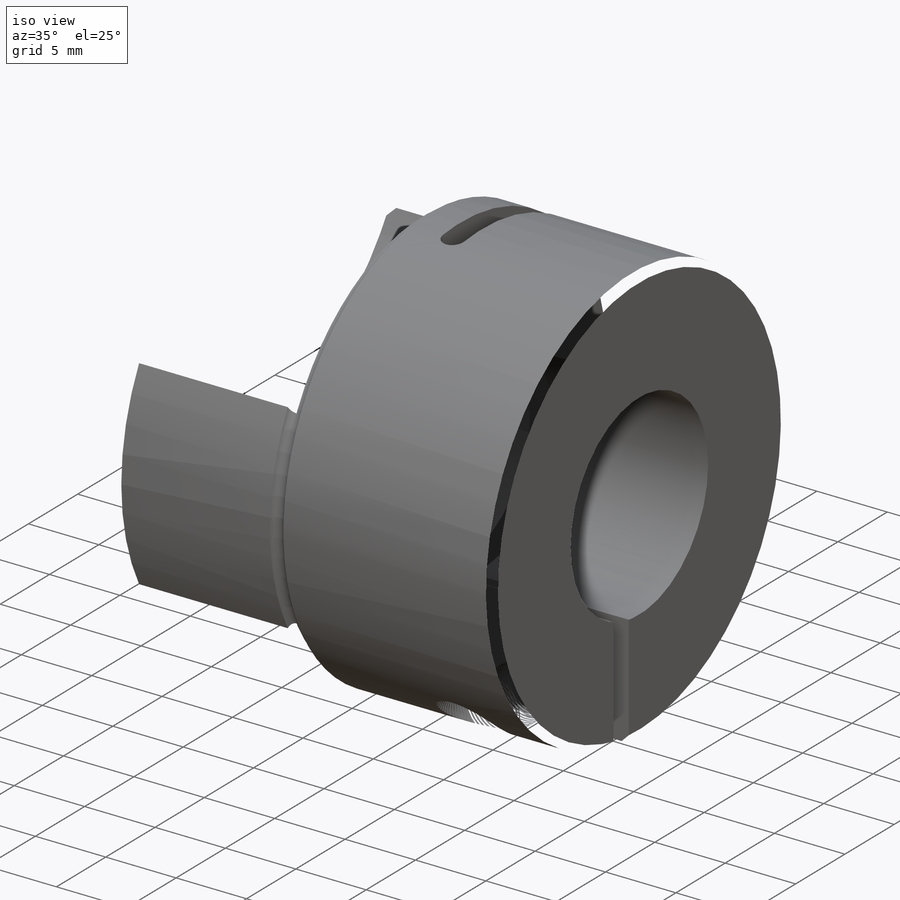
[diagram: iso view]
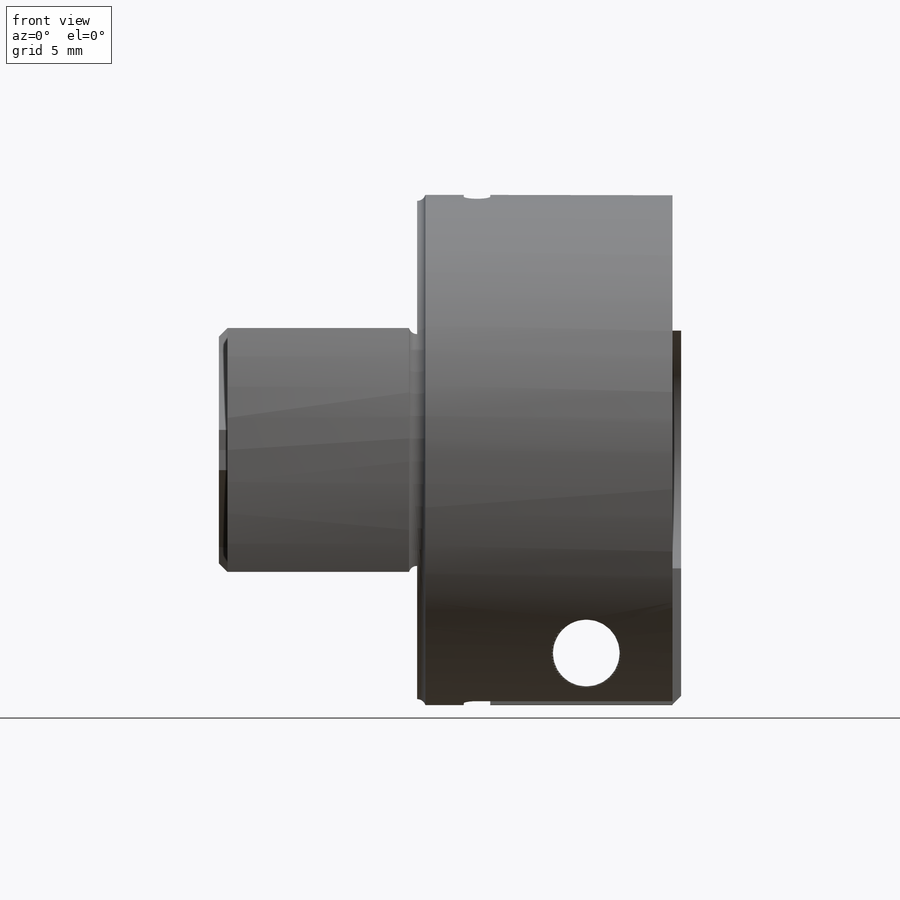
[diagram: front view]
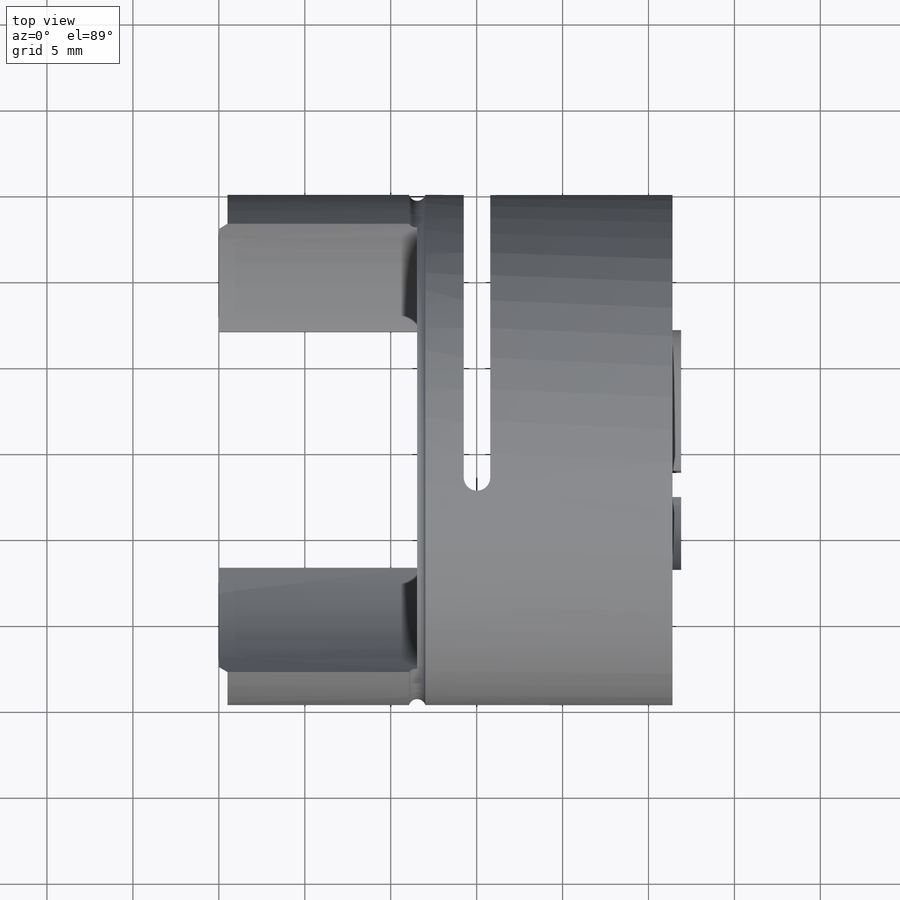
[diagram: top view]
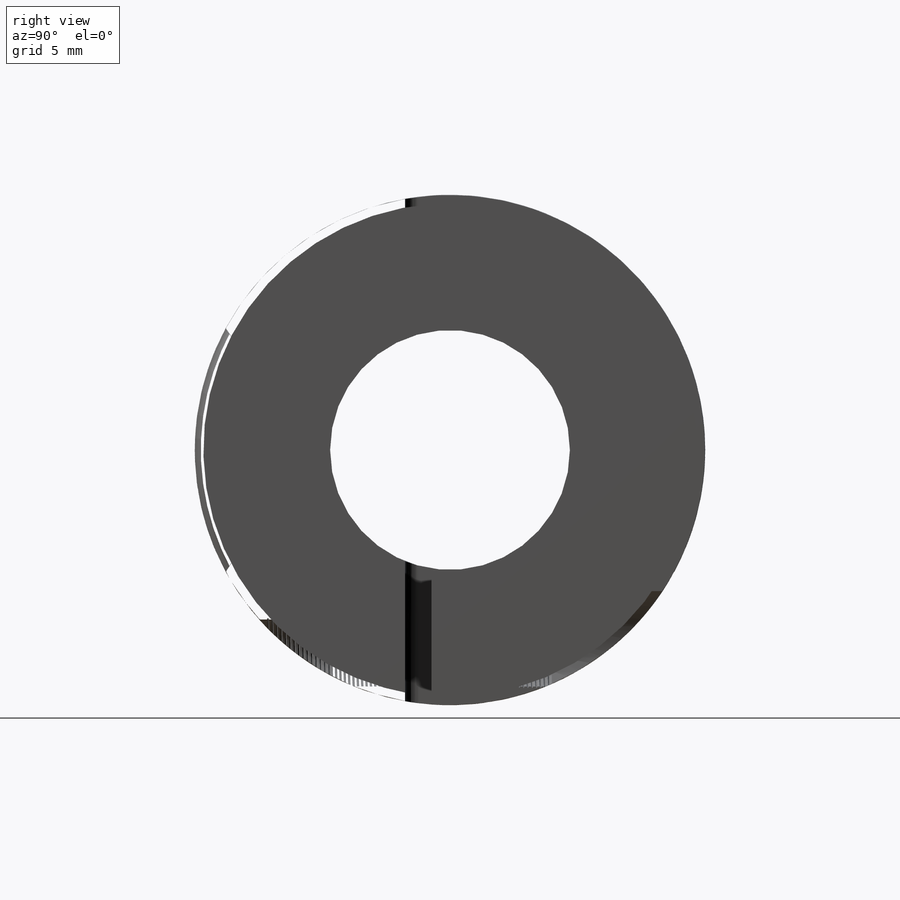
[diagram: right view]
SOLIDWORKS PART (.sldprt)
format: sldprt  version: not decoded by parser v0  size: 1,211,392 bytes
history: native  units: mm
features: sketch x10, cut_extrude x4, plane x4, cut_revolve x2, material x1, extrude x1, hole x1, helix x1, sweep x1, chamfer x1 (+12 scaffold rows collapsed)
feature tree (38):
  scaffold x12  (default folders/planes/origin — collapsed)
  material  "Aluminio"
  sketch  "Sketch1"  dims[D1=29.7mm]
  extrude  "Boss-Extrude1"  Depth=26.9mm
  sketch  "Sketch3"  dims[D1=13.95mm]
  cut_extrude  "Cut-Extrude1"  [1 undecoded]
  plane  "Plane1"
  sketch  "Sketch2"  dims[c1.D3=7.675mm c1.D1=0.5mm c1.D2=0.5mm c2.D3=~2.337974mm]
  cut_extrude  "Cut-Extrude2"  Depth=11.54mm
  sketch  "Sketch5"  dims[c1.D1=1.0mm c1.D3=3.0mm c1.D2=15.0mm c2.D3=15.36mm]
  cut_revolve  "Cut-Revolve1"  Angle=360deg
  sketch  "Sketch6"  dims[c1.D3=0.76mm c1.D1=1.52mm c1.D2=~1.451337mm c2.D3=16.7mm c2.D4=15.35mm c2.D1=2.5mm c2.D2=1.54mm c3.D3=16.7mm c3.D4=16.7mm c3.D1=11.11mm]
  cut_extrude  "Cut-Extrude4"  Depth=35mm
  sketch  "Sketch9"  dims[D1=1.54mm]
  cut_extrude  "Cut-Extrude5"  Depth=15mm
  plane  "Plane2"  Offset=15mm
  hole  "Refrentado para tornillo tapón con cabeza de clavija de M2.51"  Diameter=3.91mm Depth=28.77mm
  sketch  "Sketch12"  dims[D1=3.0mm D2=5.59mm]
  sketch  "Sketch11"  dims[hole-wizard template sketch: 41 standard entries collapsed; hole parameters kept: c12.Thru Hole Dia.=3.91mm c12.Thru Hole Depth=28.77mm c12.C'Bore Dia.=7.2mm c12.C'Bore Depth=8.0mm]
  cut_revolve  "Eje1"  [1 undecoded]
  sketch  "Croquis1"  dims[D1=4.0mm D2=14.0mm]
  helix  "Hélice/Espiral1"  Pitch=16.625mm
  plane  "Plano1"  Offset=0mm
  plane  "Plano2"
  sketch  "Croquis4"  dims[c1.D1=0.15mm c1.D2=0.0mm c1.D3=2.9mm c2.D3=~92.652651deg c3.D3=0.5mm c4.D3=~2.652651deg c5.D3=0.5mm c6.D3=270.0deg]
  sweep  "Cortar-Barrer1"
  chamfer  "Chaflán1"  Distance=0.5mm Angle=45deg
decode coverage: 18 of 21 modeling features carry decoded parameters
note: ~ marks probable driven/reference dimensions
note: 2 parameter values undecoded
note: suppression state not decoded; provenance and decode notes live in map.json
